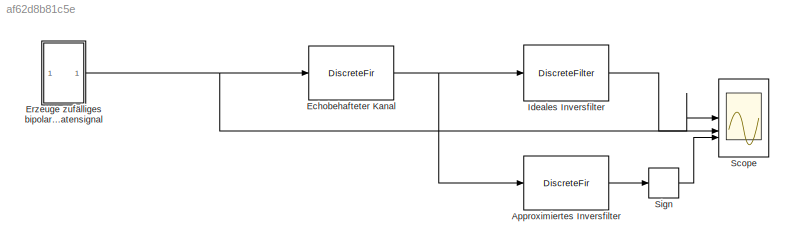
MODEL slx_af62d8b81c5e
KIND model
CONFIG AbsTol = auto
CONFIG EnableMultiTasking = off
CONFIG FixedStep = auto
CONFIG MaxStep = auto
CONFIG MinStep = auto
CONFIG RelTol = 1e-3
CONFIG SampleTimeConstraint = Unconstrained
CONFIG SolverName = VariableStepAuto
CONFIG StartTime = 0.0
CONFIG StopTime = 80
BLOCK [DiscreteFir] Approximiertes Inversfilter
  Coefficients = bapp
  InputPortMap = u0
  InputProcessing = Columns as channels (frame based)
  OutputPortMap = o0
BLOCK [DiscreteFir] Echobehafteter Kanal
  Coefficients = [1 zeros(1,7) 0.6 zeros(1,4) 0.4]
  InputPortMap = u0
  OutputPortMap = o0
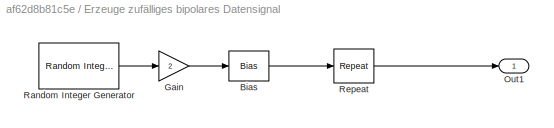
BLOCK [SubSystem] Erzeuge zufälliges bipolares Datensignal
BLOCK [Bias] Erzeuge zufälliges bipolares Datensignal/Bias
  Bias = -1
  SaturateOnIntegerOverflow = off
BLOCK [Gain] Erzeuge zufälliges bipolares Datensignal/Gain
  Gain = 2
BLOCK [Outport] Erzeuge zufälliges bipolares Datensignal/Out1
BLOCK [Reference] Erzeuge zufälliges bipolares Datensignal/Random Integer Generator  REF=commrandsrc3/Random Integer
Generator
  SourceBlock = commrandsrc3/Random Integer\nGenerator
  SourceType = Random Integer Generator
BLOCK [Reference] Erzeuge zufälliges bipolares Datensignal/Repeat  REF=dspsigops/Repeat
  SourceBlock = dspsigops/Repeat
  SourceType = Repeat
  UserDataPersistent = on
BLOCK [DiscreteFilter] Ideales Inversfilter
  Denominator = ainv
  FilterStructure = Direct form II transposed
  InputPortMap = u0
  InputProcessing = Columns as channels (frame based)
  Numerator = binv
  a0EqualsOne = on
BLOCK [Scope] Scope
  Floating = off
  NumInputPorts = 3
  ScopeSpecificationString = Simulink.scopes.TimeScopeBlockCfg('CurrentConfiguration', extmgr.ConfigurationSet(extmgr.Configuration('Core','General UI',true),extmgr.Configuration('Core','Source UI',true),extmgr.Configuration('Sources','WiredSimulink',true),extmgr.Configuration('Visuals','Time Domain',true,'SerializedDisplays',{struct('MinYLimReal','-1.25','MaxYLimReal','1.25','YLabelReal','','MinYLimMag','0.00000','MaxYLimMag...<+2709ch>
BLOCK [Signum] Sign
LINE Approximiertes Inversfilter:1 -> Sign:1
NET Echobehafteter Kanal:1 -> Approximiertes Inversfilter:1, Ideales Inversfilter:1
LINE Erzeuge zufälliges bipolares Datensignal/Bias:1 -> Erzeuge zufälliges bipolares Datensignal/Repeat:1
LINE Erzeuge zufälliges bipolares Datensignal/Gain:1 -> Erzeuge zufälliges bipolares Datensignal/Bias:1
LINE Erzeuge zufälliges bipolares Datensignal/Random Integer Generator:1 -> Erzeuge zufälliges bipolares Datensignal/Gain:1
LINE Erzeuge zufälliges bipolares Datensignal/Repeat:1 -> Erzeuge zufälliges bipolares Datensignal/Out1:1
NET Erzeuge zufälliges bipolares Datensignal:1 -> Echobehafteter Kanal:1, Scope:1
LINE Ideales Inversfilter:1 -> Scope:2
LINE Sign:1 -> Scope:3
note: NET lines group one-source signal fan-out (src -> all destinations, sorted); 1:1 wires keep LINE
